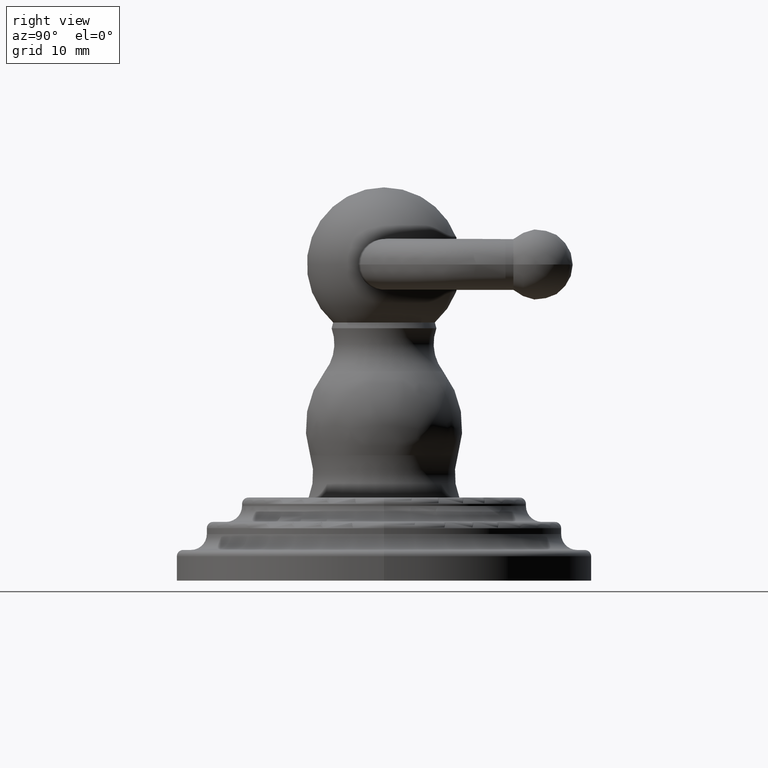
[diagram: clean part render]
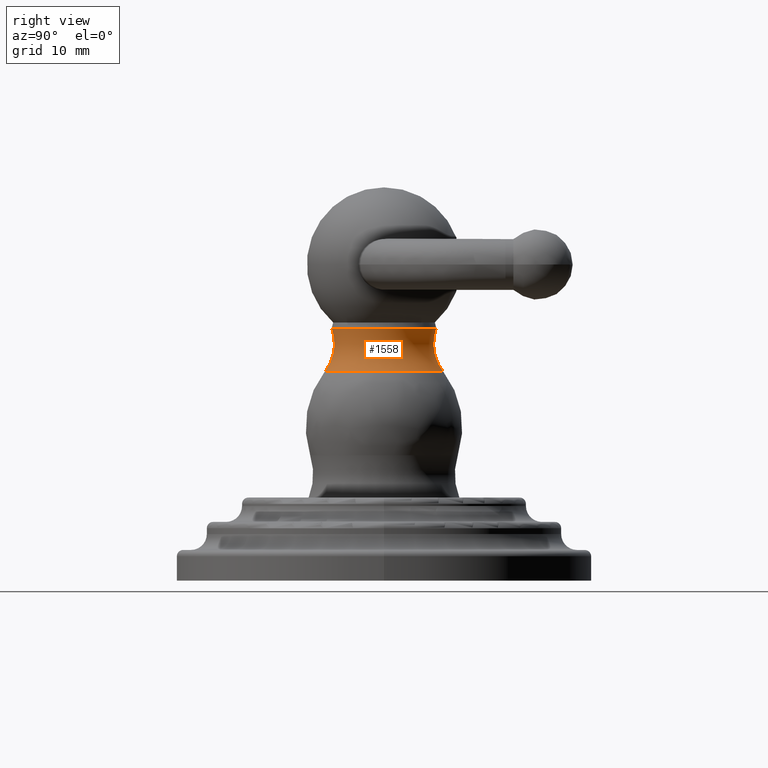
[diagram: same view with one face highlighted and labeled with its STEP entity id]
A machine part, right view. The second image highlights one B-rep face of the part: STEP entity #1558.
In plain terms, the highlighted toroidal blend (fillet) surface has major radius 14.7721 mm and minor (blend) radius 7.0104 mm.
Its self-contained STEP definition (entity closure, byte-faithful):
#528=CARTESIAN_POINT('',(0.E0,5.815800142172E-1,1.458663513251E0));
#529=DIRECTION('',(-1.E0,0.E0,0.E0));
#530=DIRECTION('',(0.E0,-7.889713088722E-1,-6.144300397738E-1));
#531=AXIS2_PLACEMENT_3D('',#528,#529,#530);
#536=CARTESIAN_POINT('',(0.E0,0.E0,1.289080822273E0));
#537=DIRECTION('',(0.E0,0.E0,-1.E0));
#538=DIRECTION('',(0.E0,1.E0,0.E0));
#539=AXIS2_PLACEMENT_3D('',#536,#537,#538);
#544=CARTESIAN_POINT('',(0.E0,-5.815800142172E-1,1.458663513251E0));
#545=DIRECTION('',(1.E0,0.E0,0.E0));
#546=DIRECTION('',(0.E0,7.889713088722E-1,-6.144300397738E-1));
#547=AXIS2_PLACEMENT_3D('',#544,#545,#546);
#559=CARTESIAN_POINT('',(0.E0,0.E0,1.554E0));
#560=DIRECTION('',(0.E0,0.E0,-1.E0));
#561=DIRECTION('',(0.E0,1.E0,0.E0));
#562=AXIS2_PLACEMENT_3D('',#559,#560,#561);
#923=CARTESIAN_POINT('',(0.E0,3.638239329685E-1,1.289080822273E0));
#925=VERTEX_POINT('',#923);
#926=CARTESIAN_POINT('',(0.E0,3.225685196955E-1,1.554E0));
#927=VERTEX_POINT('',#926);
#933=CARTESIAN_POINT('',(0.E0,-3.638239329685E-1,1.289080822273E0));
#935=VERTEX_POINT('',#933);
#936=CARTESIAN_POINT('',(0.E0,-3.225685196955E-1,1.554E0));
#937=VERTEX_POINT('',#936);
#1546=CARTESIAN_POINT('',(0.E0,0.E0,1.458663513251E0));
#1547=DIRECTION('',(0.E0,0.E0,1.E0));
#1548=DIRECTION('',(0.E0,1.E0,0.E0));
#1549=AXIS2_PLACEMENT_3D('',#1546,#1547,#1548);
#1550=TOROIDAL_SURFACE('',#1549,5.815800142172E-1,2.76E-1);
#1551=ORIENTED_EDGE('',*,*,#1529,.F.);
#1552=ORIENTED_EDGE('',*,*,#1468,.T.);
#1553=ORIENTED_EDGE('',*,*,#1533,.T.);
#1555=ORIENTED_EDGE('',*,*,#1554,.F.);
#1556=EDGE_LOOP('',(#1551,#1552,#1553,#1555));
#1557=FACE_OUTER_BOUND('',#1556,.F.);
#532=CIRCLE('',#531,2.76E-1);
#540=CIRCLE('',#539,3.638239329685E-1);
#548=CIRCLE('',#547,2.76E-1);
#563=CIRCLE('',#562,3.225685196955E-1);
#1468=EDGE_CURVE('',#925,#935,#540,.T.);
#1529=EDGE_CURVE('',#925,#927,#532,.T.);
#1533=EDGE_CURVE('',#935,#937,#548,.T.);
#1554=EDGE_CURVE('',#927,#937,#563,.T.);
#1558=ADVANCED_FACE('',(#1557),#1550,.F.);